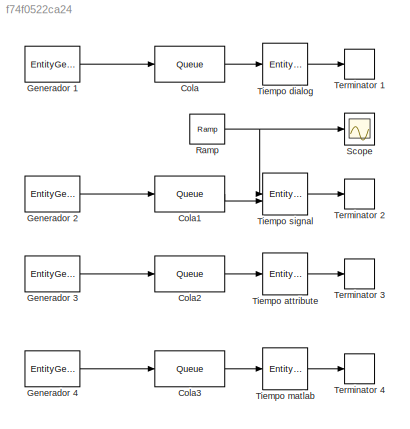
MODEL slx_f74f0522ca24
KIND model
CONFIG AbsTol = auto
CONFIG EnableMultiTasking = off
CONFIG FixedStep = auto
CONFIG MaxStep = auto
CONFIG MinStep = auto
CONFIG RelTol = 1e-3
CONFIG SampleTimeConstraint = Unconstrained
CONFIG SolverName = VariableStepAuto
CONFIG StartTime = 0.0
CONFIG StopTime = 20
BLOCK [Queue] Cola
  InputPortMap = u0
  InputPortMessageModes = m
  OutputPortMap = o5
  OutputPortMessageModes = m
BLOCK [Queue] Cola1
  InputPortMap = u0
  InputPortMessageModes = m
  OutputPortMap = o5
  OutputPortMessageModes = m
BLOCK [Queue] Cola2
  InputPortMap = u0
  InputPortMessageModes = m
  OutputPortMap = o5
  OutputPortMessageModes = m
BLOCK [Queue] Cola3
  InputPortMap = u0
  InputPortMessageModes = m
  OutputPortMap = o5
  OutputPortMessageModes = m
BLOCK [EntityGenerator] Generador 1
  EntityType = Structured
  EntityTypeName = Entity
  OutputPortMap = o3
  OutputPortMessageModes = m
BLOCK [EntityGenerator] Generador 2
  EntityType = Structured
  EntityTypeName = Entity
  OutputPortMap = o3
  OutputPortMessageModes = m
BLOCK [EntityGenerator] Generador 3
  AttributeInitialValue = 4
  EntityType = Structured
  EntityTypeName = Entity
  OutputPortMap = o3
  OutputPortMessageModes = m
BLOCK [EntityGenerator] Generador 4
  EntityType = Structured
  EntityTypeName = Entity
  OutputPortMap = o3
  OutputPortMessageModes = m
BLOCK [Reference] Ramp  REF=simulink/Sources/Ramp
  SourceBlock = simulink/Sources/Ramp
  SourceType = Ramp
BLOCK [Scope] Scope
  Floating = off
  NumInputPorts = 1
  ScopeSpecificationString = Simulink.scopes.TimeScopeBlockCfg('CurrentConfiguration', extmgr.ConfigurationSet(extmgr.Configuration('Core','General UI',true),extmgr.Configuration('Core','Source UI',true),extmgr.Configuration('Sources','WiredSimulink',true),extmgr.Configuration('Visuals','Time Domain',true),extmgr.Configuration('Tools','Plot Navigation',true),extmgr.Configuration('Tools','Measurements',true)),'Version','2023a'...<+1ch>
BLOCK [EntityTerminator] Terminator 1
  InputPortMap = u0
  InputPortMessageModes = m
  NameLocation = right
BLOCK [EntityTerminator] Terminator 2
  InputPortMap = u0
  InputPortMessageModes = m
  NameLocation = right
BLOCK [EntityTerminator] Terminator 3
  InputPortMap = u0
  InputPortMessageModes = m
  NameLocation = right
BLOCK [EntityTerminator] Terminator 4
  InputPortMap = u0
  InputPortMessageModes = m
  NameLocation = right
BLOCK [EntityServer] Tiempo attribute
  Capacity = 1
  InputPortMap = u2
  InputPortMessageModes = m
  OutputPortMap = o9
  OutputPortMessageModes = m
  ServiceTimeAttributeName = Attribute1
  ServiceTimeSource = Attribute
  ServiceTimeValue = 2
BLOCK [EntityServer] Tiempo dialog
  Capacity = 1
  InputPortMap = u2
  InputPortMessageModes = m
  OutputPortMap = o9
  OutputPortMessageModes = m
  ServiceTimeValue = 2
BLOCK [EntityServer] Tiempo matlab
  Capacity = 1
  InputPortMap = u2
  InputPortMessageModes = m
  OutputPortMap = o9
  OutputPortMessageModes = m
  ServiceTimeValue = 2
BLOCK [EntityServer] Tiempo signal 
  Capacity = 1
  InputPortMap = u0,u2
  InputPortMessageModes = n,m
  OutputPortMap = o9
  OutputPortMessageModes = m
  ServiceTimeSource = Signal port
  ServiceTimeValue = 2
LINE Cola1:1 -> Tiempo signal :2
LINE Cola2:1 -> Tiempo attribute:1
LINE Cola3:1 -> Tiempo matlab:1
LINE Cola:1 -> Tiempo dialog:1
LINE Generador 1:1 -> Cola:1
LINE Generador 2:1 -> Cola1:1
LINE Generador 3:1 -> Cola2:1
LINE Generador 4:1 -> Cola3:1
NET Ramp:1 -> Scope:1, Tiempo signal :1
LINE Tiempo attribute:1 -> Terminator 3:1
LINE Tiempo dialog:1 -> Terminator 1:1
LINE Tiempo matlab:1 -> Terminator 4:1
LINE Tiempo signal :1 -> Terminator 2:1
note: NET lines group one-source signal fan-out (src -> all destinations, sorted); 1:1 wires keep LINE
